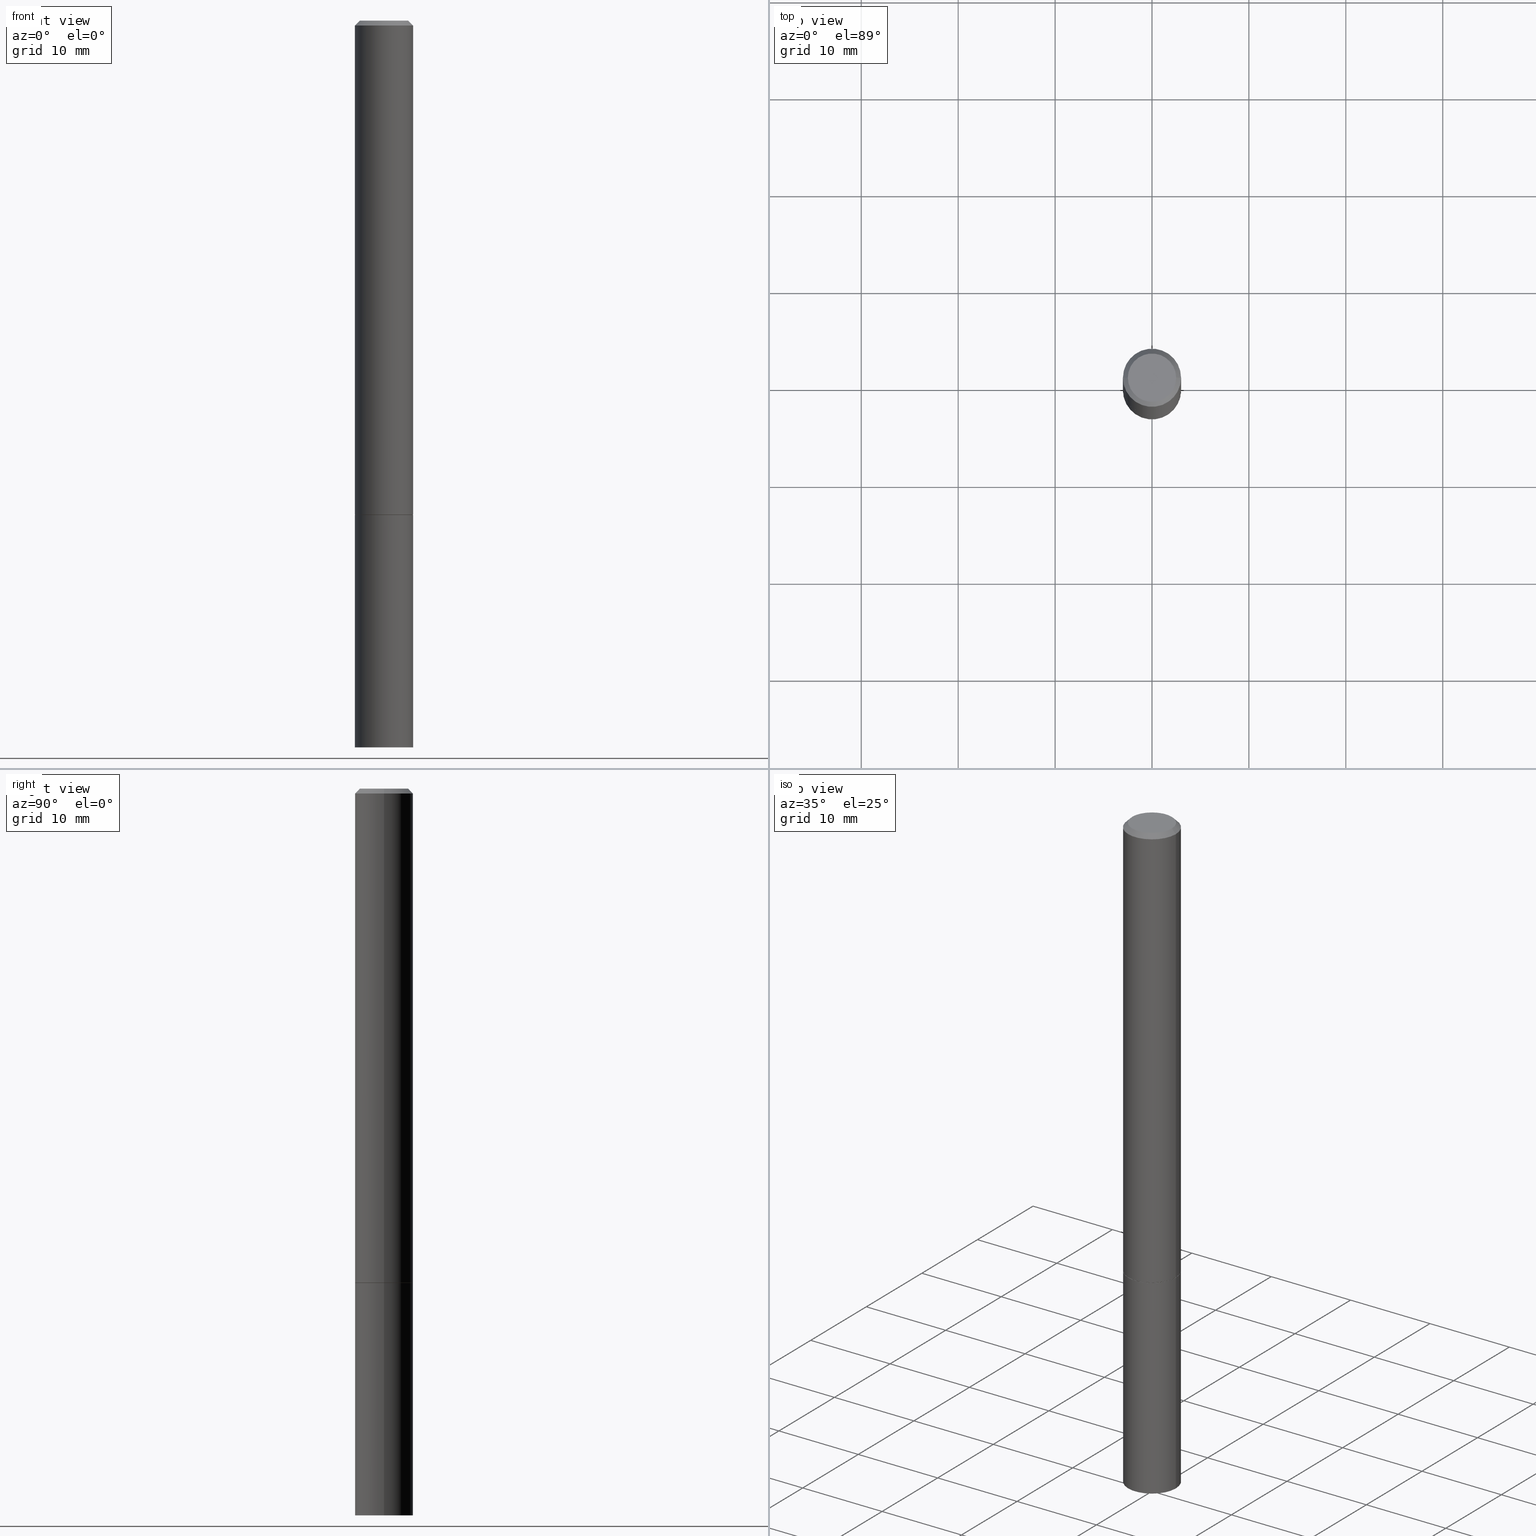
[diagram: canonical four-view strip — front | top / right | iso, engineering-drawing reading convention]
A machine part, canonical four-view strip (front | top / right | iso — engineering-drawing reading convention). The complete STEP part file that produces these views, byte-faithful:
ISO-10303-21;
HEADER;
FILE_DESCRIPTION (( 'STEP AP203' ),
    '1' );
FILE_NAME ('74335.STEP',
    '2024-02-29T08:50:11',
    ( '' ),
    ( '' ),
    'SwSTEP 2.0',
    'SolidWorks 2023',
    '' );
FILE_SCHEMA (( 'CONFIG_CONTROL_DESIGN' ));
ENDSEC;

DATA;
#1 = ORIENTED_EDGE ( 'NONE', *, *, #45, .F. ) ;
#2 = PERSON_AND_ORGANIZATION ( #302, #133 ) ;
#3 = DIRECTION ( 'NONE',  ( -2.445468806185136597E-29, 3.491481338843145583E-15, 1.000000000000000000 ) ) ;
#4 = PERSON_AND_ORGANIZATION ( #302, #133 ) ;
#5 = CIRCLE ( 'NONE', #247, 0.09809999999999979847 ) ;
#6 = DIRECTION ( 'NONE',  ( -2.445468806185136877E-29, 3.491481338843145188E-15, 1.000000000000000000 ) ) ;
#7 = CC_DESIGN_APPROVAL ( #49, ( #109 ) ) ;
#8 = VERTEX_POINT ( 'NONE', #298 ) ;
#9 = CALENDAR_DATE ( 2024, 29, 2 ) ;
#10 = DIRECTION ( 'NONE',  ( -2.445468806185136877E-29, 3.491481338843145188E-15, 1.000000000000000000 ) ) ;
#11 = EDGE_CURVE ( 'NONE', #37, #144, #153, .T. ) ;
#12 = CARTESIAN_POINT ( 'NONE',  ( 0.1180999999999999966, -8.246878922347480654E-16, 5.758764772215000440E-30 ) ) ;
#13 = CLOSED_SHELL ( 'NONE', ( #141, #172, #155, #76 ) ) ;
#14 = CIRCLE ( 'NONE', #160, 0.1170999999999999958 ) ;
#15 = CYLINDRICAL_SURFACE ( 'NONE', #112, 0.1180999999999998995 ) ;
#16 = PLANE ( 'NONE',  #107 ) ;
#17 = DIRECTION ( 'NONE',  ( -2.445468806185136597E-29, 3.491481338843145583E-15, 1.000000000000000000 ) ) ;
#18 = FACE_OUTER_BOUND ( 'NONE', #91, .T. ) ;
#19 = ORIENTED_EDGE ( 'NONE', *, *, #25, .T. ) ;
#20 = CIRCLE ( 'NONE', #70, 0.1180999999999999966 ) ;
#21 = VECTOR ( 'NONE', #162, 39.37007874015748143 ) ;
#22 = DIRECTION ( 'NONE',  ( 1.000000000000000000, 0.000000000000000000, 0.000000000000000000 ) ) ;
#23 = ORIENTED_EDGE ( 'NONE', *, *, #104, .F. ) ;
#24 =( NAMED_UNIT ( * ) SI_UNIT ( $, .STERADIAN. ) SOLID_ANGLE_UNIT ( ) );
#25 = EDGE_CURVE ( 'NONE', #181, #359, #352, .T. ) ;
#26 = APPROVAL_DATE_TIME ( #340, #75 ) ;
#27 = APPROVAL_ROLE ( '' ) ;
#28 = EDGE_CURVE ( 'NONE', #139, #55, #184, .T. ) ;
#29 = CARTESIAN_POINT ( 'NONE',  ( -0.1180999999999999966, -7.820944767866917317E-15, -2.952799999999999869 ) ) ;
#30 = COORDINATED_UNIVERSAL_TIME_OFFSET ( 5, 0, .BEHIND. ) ;
#31 = PRODUCT_RELATED_PRODUCT_CATEGORY ( 'detail', '', ( #346 ) ) ;
#32 = ORIENTED_EDGE ( 'NONE', *, *, #268, .T. ) ;
#33 = ORIENTED_EDGE ( 'NONE', *, *, #63, .F. ) ;
#34 = PERSON_AND_ORGANIZATION_ROLE ( 'creator' ) ;
#35 = AXIS2_PLACEMENT_3D ( 'NONE', #197, #64, #143 ) ;
#36 = ORIENTED_EDGE ( 'NONE', *, *, #226, .F. ) ;
#37 = VERTEX_POINT ( 'NONE', #29 ) ;
#38 = COORDINATED_UNIVERSAL_TIME_OFFSET ( 5, 0, .BEHIND. ) ;
#39 = CARTESIAN_POINT ( 'NONE',  ( 0.1180999999999998995, -8.246878922347473751E-16, 5.758764772214994835E-30 ) ) ;
#40 = EDGE_CURVE ( 'NONE', #336, #239, #199, .T. ) ;
#41 = CARTESIAN_POINT ( 'NONE',  ( 8.246878922347970734E-16, 0.1180999999999929745, -2.007900000000000240 ) ) ;
#42 = ORIENTED_EDGE ( 'NONE', *, *, #40, .T. ) ;
#43 = CARTESIAN_POINT ( 'NONE',  ( 0.1180999999999997746, -8.800544403136792597E-16, -0.02000000000000003164 ) ) ;
#44 = VECTOR ( 'NONE', #267, 39.37007874015748143 ) ;
#45 = EDGE_CURVE ( 'NONE', #8, #144, #212, .T. ) ;
#46 = ORIENTED_EDGE ( 'NONE', *, *, #244, .F. ) ;
#47 = DIRECTION ( 'NONE',  ( 0.7071067811865466846, -7.319954787623252890E-15, -0.7071067811865483499 ) ) ;
#48 = DIRECTION ( 'NONE',  ( -2.445468806185136597E-29, 3.491481338843145583E-15, 1.000000000000000000 ) ) ;
#49 = APPROVAL ( #170, 'UNSPECIFIED' ) ;
#50 = ORIENTED_EDGE ( 'NONE', *, *, #363, .T. ) ;
#51 = DIRECTION ( 'NONE',  ( 1.000000000000000000, -6.982962677686266711E-15, 0.000000000000000000 ) ) ;
#52 = VECTOR ( 'NONE', #173, 39.37007874015748143 ) ;
#53 = DESIGN_CONTEXT ( 'detailed design', #217, 'design' ) ;
#54 = CARTESIAN_POINT ( 'NONE',  ( 4.890937612370280165E-31, -6.982962677686301470E-17, -0.02000000000000003164 ) ) ;
#55 = VERTEX_POINT ( 'NONE', #241 ) ;
#56 = ADVANCED_FACE ( 'NONE', ( #120 ), #136, .T. ) ;
#57 = CARTESIAN_POINT ( 'NONE',  ( -0.1180999999999997746, 7.548582654578835839E-16, -0.02000000000000003164 ) ) ;
#58 = CC_DESIGN_DATE_AND_TIME_ASSIGNMENT ( #195, #151, ( #109 ) ) ;
#59 = DATE_AND_TIME ( #9, #255 ) ;
#60 = ORIENTED_EDGE ( 'NONE', *, *, #89, .T. ) ;
#61 = AXIS2_PLACEMENT_3D ( 'NONE', #157, #274, #106 ) ;
#62 = DIRECTION ( 'NONE',  ( 1.000000000000000000, -6.982962677686266711E-15, 0.000000000000000000 ) ) ;
#63 = EDGE_CURVE ( 'NONE', #37, #253, #20, .T. ) ;
#64 = DIRECTION ( 'NONE',  ( -2.445468806185136597E-29, 3.491481338843145583E-15, 1.000000000000000000 ) ) ;
#65 = CARTESIAN_POINT ( 'NONE',  ( 2.087702828670439639E-46, -2.980686340760894400E-32, -8.537024980200822558E-18 ) ) ;
#66 = CARTESIAN_POINT ( 'NONE',  ( 4.890937612370280165E-31, -6.982962677686301470E-17, -0.02000000000000003164 ) ) ;
#67 = ORIENTED_EDGE ( 'NONE', *, *, #63, .T. ) ;
#68 = DIRECTION ( 'NONE',  ( 1.000000000000000000, -6.982962677686266711E-15, 4.876176775795935232E-29 ) ) ;
#69 = FACE_OUTER_BOUND ( 'NONE', #287, .T. ) ;
#70 = AXIS2_PLACEMENT_3D ( 'NONE', #176, #93, #293 ) ;
#71 = LINE ( 'NONE', #12, #200 ) ;
#72 = EDGE_LOOP ( 'NONE', ( #189, #32, #204, #348 ) ) ;
#73 = DIRECTION ( 'NONE',  ( -2.445468806185136597E-29, 3.491481338843145583E-15, 1.000000000000000000 ) ) ;
#74 = CARTESIAN_POINT ( 'NONE',  ( 4.890937612370280165E-31, -6.982962677686301470E-17, -0.02000000000000003164 ) ) ;
#75 = APPROVAL ( #317, 'UNSPECIFIED' ) ;
#76 = ADVANCED_FACE ( 'NONE', ( #324 ), #201, .T. ) ;
#77 = DIRECTION ( 'NONE',  ( 2.438088387897960049E-29, -3.491481338843145188E-15, -1.000000000000000000 ) ) ;
#78 = ORIENTED_EDGE ( 'NONE', *, *, #118, .F. ) ;
#79 = PERSON_AND_ORGANIZATION ( #302, #133 ) ;
#80 = CARTESIAN_POINT ( 'NONE',  ( 4.910256815939135309E-29, -7.010545380263150922E-15, -2.007899999999999796 ) ) ;
#81 = PRODUCT_DEFINITION_FORMATION_WITH_SPECIFIED_SOURCE ( 'ANY', '', #346, .NOT_KNOWN. ) ;
#82 = APPLICATION_PROTOCOL_DEFINITION ( 'international standard', 'config_control_design', 1994, #217 ) ;
#83 = DIRECTION ( 'NONE',  ( 1.000000000000000000, -6.982962677686267499E-15, 4.876195163481342132E-29 ) ) ;
#84 = LOCAL_TIME ( 3, 50, 11.00000000000000000, #313 ) ;
#85 = DATE_AND_TIME ( #237, #248 ) ;
#86 = LINE ( 'NONE', #318, #44 ) ;
#87 = DIRECTION ( 'NONE',  ( -2.445468806185136597E-29, 3.491481338843145583E-15, 1.000000000000000000 ) ) ;
#88 = ORIENTED_EDGE ( 'NONE', *, *, #45, .T. ) ;
#89 = EDGE_CURVE ( 'NONE', #359, #336, #168, .T. ) ;
#90 = DIRECTION ( 'NONE',  ( 1.000000000000000000, -6.982962677686266711E-15, 4.876176775795936353E-29 ) ) ;
#91 = EDGE_LOOP ( 'NONE', ( #19, #60, #316, #177 ) ) ;
#92 = AXIS2_PLACEMENT_3D ( 'NONE', #80, #252, #308 ) ;
#93 = DIRECTION ( 'NONE',  ( -2.445468806185136597E-29, 3.491481338843145583E-15, 1.000000000000000000 ) ) ;
#94 = MANIFOLD_SOLID_BREP ( 'Body-Move/Copy2[1]', #13 ) ;
#95 = CARTESIAN_POINT ( 'NONE',  ( 0.1180999999999999966, -1.113433398957078679E-14, -2.952799999999999869 ) ) ;
#96 = EDGE_LOOP ( 'NONE', ( #185, #311, #254, #42 ) ) ;
#97 = DIRECTION ( 'NONE',  ( 1.000000000000000000, -6.982962677686265922E-15, 4.876176775795935793E-29 ) ) ;
#98 = CC_DESIGN_DATE_AND_TIME_ASSIGNMENT ( #175, #269, ( #101 ) ) ;
#99 = DIRECTION ( 'NONE',  ( -2.445468806185136597E-29, 3.491481338843145583E-15, 1.000000000000000000 ) ) ;
#100 = CIRCLE ( 'NONE', #309, 0.1180999999999999966 ) ;
#101 = SECURITY_CLASSIFICATION ( '', '', #124 ) ;
#102 = DIRECTION ( 'NONE',  ( 2.438088387897960049E-29, -3.491481338843145188E-15, -1.000000000000000000 ) ) ;
#103 = CARTESIAN_POINT ( 'NONE',  ( 0.000000000000000000, 0.000000000000000000, 0.000000000000000000 ) ) ;
#104 = EDGE_CURVE ( 'NONE', #154, #181, #150, .T. ) ;
#105 = ADVANCED_BREP_SHAPE_REPRESENTATION ( '74335', ( #94, #211, #156 ), #315 ) ;
#106 = DIRECTION ( 'NONE',  ( 1.000000000000000000, -6.982962677686264344E-15, 0.000000000000000000 ) ) ;
#107 = AXIS2_PLACEMENT_3D ( 'NONE', #41, #210, #132 ) ;
#108 = AXIS2_PLACEMENT_3D ( 'NONE', #54, #227, #288 ) ;
#109 = PRODUCT_DEFINITION ( 'UNKNOWN', '', #81, #53 ) ;
#110 = LINE ( 'NONE', #57, #21 ) ;
#111 = CC_DESIGN_PERSON_AND_ORGANIZATION_ASSIGNMENT ( #167, #319, ( #81 ) ) ;
#112 = AXIS2_PLACEMENT_3D ( 'NONE', #103, #218, #68 ) ;
#113 = CONICAL_SURFACE ( 'NONE', #284, 0.1180999999999997746, 0.7853981633974471688 ) ;
#114 = CARTESIAN_POINT ( 'NONE',  ( 6.850286386810212718E-16, 0.09809999999999979847, -3.467828318306122952E-16 ) ) ;
#115 = APPLICATION_CONTEXT ( 'configuration controlled 3d designs of mechanical parts and assemblies' ) ;
#116 = SHAPE_DEFINITION_REPRESENTATION ( #235, #105 ) ;
#117 = DIRECTION ( 'NONE',  ( -2.445468806185136597E-29, 3.491481338843145583E-15, 1.000000000000000000 ) ) ;
#118 = EDGE_CURVE ( 'NONE', #198, #359, #86, .T. ) ;
#119 = PERSON_AND_ORGANIZATION_ROLE ( 'design_owner' ) ;
#120 = FACE_OUTER_BOUND ( 'NONE', #179, .T. ) ;
#121 = CONICAL_SURFACE ( 'NONE', #108, 0.1180999999999997746, 0.7853981633974471688 ) ;
#122 = APPROVAL_ROLE ( '' ) ;
#123 = CARTESIAN_POINT ( 'NONE',  ( -0.09809999999999979847, 7.199434520694525264E-16, -8.537024980205735990E-18 ) ) ;
#124 = SECURITY_CLASSIFICATION_LEVEL ( 'unclassified' ) ;
#125 = DIRECTION ( 'NONE',  ( 1.000000000000000000, -6.982962677686265133E-15, 0.000000000000000000 ) ) ;
#126 = ORIENTED_EDGE ( 'NONE', *, *, #118, .T. ) ;
#127 = DIRECTION ( 'NONE',  ( -2.445468806185136597E-29, 3.491481338843145583E-15, 1.000000000000000000 ) ) ;
#128 = VECTOR ( 'NONE', #6, 39.37007874015748143 ) ;
#129 = CARTESIAN_POINT ( 'NONE',  ( 4.910256815939135309E-29, -7.010545380263150922E-15, -2.007899999999999796 ) ) ;
#130 = EDGE_CURVE ( 'NONE', #181, #239, #295, .T. ) ;
#131 = CARTESIAN_POINT ( 'NONE',  ( 2.087702828670439639E-46, -2.980686340760894400E-32, -8.537024980200822558E-18 ) ) ;
#132 = DIRECTION ( 'NONE',  ( -1.000000000000000000, 6.982962677686265922E-15, -4.876176775795935793E-29 ) ) ;
#133 = ORGANIZATION ( 'UNSPECIFIED', 'UNSPECIFIED', '' ) ;
#134 = CARTESIAN_POINT ( 'NONE',  ( -0.1170999999999999958, -6.173201382339850542E-15, -2.007899999999999796 ) ) ;
#135 = DIRECTION ( 'NONE',  ( -1.000000000000000000, 6.982962677686265922E-15, -4.876176775795935793E-29 ) ) ;
#136 = CONICAL_SURFACE ( 'NONE', #188, 0.1170999999999999958, 0.7853981633974227439 ) ;
#137 = LOCAL_TIME ( 3, 50, 11.00000000000000000, #30 ) ;
#138 =( LENGTH_UNIT ( ) NAMED_UNIT ( * ) SI_UNIT ( $, .METRE. ) );
#139 = VERTEX_POINT ( 'NONE', #123 ) ;
#140 = LOCAL_TIME ( 3, 50, 11.00000000000000000, #261 ) ;
#141 = ADVANCED_FACE ( 'NONE', ( #238 ), #236, .T. ) ;
#142 = PERSON_AND_ORGANIZATION_ROLE ( 'creator' ) ;
#143 = DIRECTION ( 'NONE',  ( 1.000000000000000000, -6.982962677686264344E-15, 0.000000000000000000 ) ) ;
#144 = VERTEX_POINT ( 'NONE', #205 ) ;
#145 = ORIENTED_EDGE ( 'NONE', *, *, #104, .T. ) ;
#146 = CALENDAR_DATE ( 2024, 29, 2 ) ;
#147 = ORIENTED_EDGE ( 'NONE', *, *, #223, .T. ) ;
#148 = ADVANCED_FACE ( 'NONE', ( #321 ), #113, .T. ) ;
#149 = CIRCLE ( 'NONE', #333, 0.1180999999999999966 ) ;
#150 = LINE ( 'NONE', #233, #277 ) ;
#151 = DATE_TIME_ROLE ( 'creation_date' ) ;
#152 = DIMENSIONAL_EXPONENTS ( 1.000000000000000000, 0.000000000000000000, 0.000000000000000000, 0.000000000000000000, 0.000000000000000000, 0.000000000000000000, 0.000000000000000000 ) ;
#153 = LINE ( 'NONE', #347, #290 ) ;
#154 = VERTEX_POINT ( 'NONE', #250 ) ;
#155 = ADVANCED_FACE ( 'NONE', ( #276 ), #16, .F. ) ;
#156 = AXIS2_PLACEMENT_3D ( 'NONE', #163, #285, #22 ) ;
#157 = CARTESIAN_POINT ( 'NONE',  ( 4.910256815939135309E-29, -7.010545380263150922E-15, -2.007899999999999796 ) ) ;
#158 = DIRECTION ( 'NONE',  ( -1.000000000000000000, 6.982962677686266711E-15, 0.000000000000000000 ) ) ;
#159 = CARTESIAN_POINT ( 'NONE',  ( 7.220980290903470182E-29, -1.030964609733603853E-14, -2.952799999999999869 ) ) ;
#160 = AXIS2_PLACEMENT_3D ( 'NONE', #281, #192, #310 ) ;
#161 = DIRECTION ( 'NONE',  ( -2.445468806185136597E-29, 3.491481338843145583E-15, 1.000000000000000000 ) ) ;
#162 = DIRECTION ( 'NONE',  ( -0.7071067811865466846, 2.468850131082247989E-15, -0.7071067811865483499 ) ) ;
#163 = CARTESIAN_POINT ( 'NONE',  ( 0.000000000000000000, 0.000000000000000000, 0.000000000000000000 ) ) ;
#164 = EDGE_LOOP ( 'NONE', ( #350, #196 ) ) ;
#165 = VECTOR ( 'NONE', #47, 39.37007874015748143 ) ;
#166 = PLANE ( 'NONE',  #360 ) ;
#167 = PERSON_AND_ORGANIZATION ( #302, #133 ) ;
#168 = LINE ( 'NONE', #291, #52 ) ;
#169 = CONICAL_SURFACE ( 'NONE', #61, 0.1170999999999999958, 0.7853981633974227439 ) ;
#170 = APPROVAL_STATUS ( 'not_yet_approved' ) ;
#171 = CARTESIAN_POINT ( 'NONE',  ( 4.890937612370280165E-31, -6.982962677686301470E-17, -0.02000000000000003164 ) ) ;
#172 = ADVANCED_FACE ( 'NONE', ( #249 ), #243, .T. ) ;
#173 = DIRECTION ( 'NONE',  ( -2.445468806185136877E-29, 3.491481338843145188E-15, 1.000000000000000000 ) ) ;
#174 = EDGE_LOOP ( 'NONE', ( #322, #147 ) ) ;
#175 = DATE_AND_TIME ( #366, #140 ) ;
#176 = CARTESIAN_POINT ( 'NONE',  ( 7.220980290903470182E-29, -1.030964609733603853E-14, -2.952799999999999869 ) ) ;
#177 = ORIENTED_EDGE ( 'NONE', *, *, #130, .F. ) ;
#178 = APPROVAL_DATE_TIME ( #85, #222 ) ;
#179 = EDGE_LOOP ( 'NONE', ( #78, #334, #145, #283 ) ) ;
#180 = ORIENTED_EDGE ( 'NONE', *, *, #244, .T. ) ;
#181 = VERTEX_POINT ( 'NONE', #275 ) ;
#182 = DIRECTION ( 'NONE',  ( 1.000000000000000000, -6.982962677686273021E-15, 0.000000000000000000 ) ) ;
#183 = ADVANCED_FACE ( 'NONE', ( #358 ), #15, .T. ) ;
#184 = CIRCLE ( 'NONE', #343, 0.09809999999999979847 ) ;
#185 = ORIENTED_EDGE ( 'NONE', *, *, #209, .F. ) ;
#186 = DIRECTION ( 'NONE',  ( 1.000000000000000000, -6.982962677686267499E-15, 4.876195163481342132E-29 ) ) ;
#187 = ORIENTED_EDGE ( 'NONE', *, *, #240, .T. ) ;
#188 = AXIS2_PLACEMENT_3D ( 'NONE', #344, #87, #203 ) ;
#189 = ORIENTED_EDGE ( 'NONE', *, *, #89, .F. ) ;
#190 = ADVANCED_FACE ( 'NONE', ( #357 ), #271, .F. ) ;
#191 = DIRECTION ( 'NONE',  ( 1.000000000000000000, -6.982962677686264344E-15, 0.000000000000000000 ) ) ;
#192 = DIRECTION ( 'NONE',  ( -2.445468806185136597E-29, 3.491481338843145583E-15, 1.000000000000000000 ) ) ;
#193 = CYLINDRICAL_SURFACE ( 'NONE', #221, 0.1180999999999998995 ) ;
#194 = ORIENTED_EDGE ( 'NONE', *, *, #11, .F. ) ;
#195 = DATE_AND_TIME ( #342, #84 ) ;
#196 = ORIENTED_EDGE ( 'NONE', *, *, #356, .F. ) ;
#197 = CARTESIAN_POINT ( 'NONE',  ( 4.907811347132949706E-29, -7.007053898924307126E-15, -2.006899999999999462 ) ) ;
#198 = VERTEX_POINT ( 'NONE', #134 ) ;
#199 = CIRCLE ( 'NONE', #219, 0.1180999999999997746 ) ;
#200 = VECTOR ( 'NONE', #354, 39.37007874015748143 ) ;
#201 = CYLINDRICAL_SURFACE ( 'NONE', #258, 0.1180999999999999966 ) ;
#202 = COORDINATED_UNIVERSAL_TIME_OFFSET ( 5, 0, .BEHIND. ) ;
#203 = DIRECTION ( 'NONE',  ( 1.000000000000000000, -6.982962677686264344E-15, 0.000000000000000000 ) ) ;
#204 = ORIENTED_EDGE ( 'NONE', *, *, #130, .T. ) ;
#205 = CARTESIAN_POINT ( 'NONE',  ( -0.1180999999999999966, -7.820944767866917317E-15, -2.007899999999999796 ) ) ;
#206 = CC_DESIGN_SECURITY_CLASSIFICATION ( #101, ( #81 ) ) ;
#207 = CC_DESIGN_PERSON_AND_ORGANIZATION_ASSIGNMENT ( #230, #34, ( #109 ) ) ;
#208 = EDGE_LOOP ( 'NONE', ( #215, #256, #1, #46 ) ) ;
#209 = EDGE_CURVE ( 'NONE', #55, #239, #216, .T. ) ;
#210 = DIRECTION ( 'NONE',  ( 2.438088387897960049E-29, -3.491481338843145188E-15, -1.000000000000000000 ) ) ;
#211 = MANIFOLD_SOLID_BREP ( 'Body-Move/Copy2[2]', #272 ) ;
#212 = CIRCLE ( 'NONE', #234, 0.1180999999999999966 ) ;
#213 = CC_DESIGN_APPROVAL ( #75, ( #81 ) ) ;
#214 = DIRECTION ( 'NONE',  ( 2.445468806185136597E-29, -3.491481338843145583E-15, -1.000000000000000000 ) ) ;
#215 = ORIENTED_EDGE ( 'NONE', *, *, #226, .T. ) ;
#216 = LINE ( 'NONE', #43, #165 ) ;
#217 = APPLICATION_CONTEXT ( 'configuration controlled 3d designs of mechanical parts and assemblies' ) ;
#218 = DIRECTION ( 'NONE',  ( -2.445468806185136597E-29, 3.491481338843145583E-15, 1.000000000000000000 ) ) ;
#219 = AXIS2_PLACEMENT_3D ( 'NONE', #171, #3, #62 ) ;
#220 =( CONVERSION_BASED_UNIT ( 'INCH', #224 ) LENGTH_UNIT ( ) NAMED_UNIT ( #152 ) );
#221 = AXIS2_PLACEMENT_3D ( 'NONE', #312, #257, #361 ) ;
#222 = APPROVAL ( #339, 'UNSPECIFIED' ) ;
#223 = EDGE_CURVE ( 'NONE', #55, #139, #5, .T. ) ;
#224 = LENGTH_MEASURE_WITH_UNIT ( LENGTH_MEASURE( 0.02539999999999999897 ), #138 );
#225 = CARTESIAN_POINT ( 'NONE',  ( 4.907811347132949706E-29, -7.007053898924307126E-15, -2.006899999999999462 ) ) ;
#226 = EDGE_CURVE ( 'NONE', #253, #37, #100, .T. ) ;
#227 = DIRECTION ( 'NONE',  ( 2.445468806185136597E-29, -3.491481338843145583E-15, -1.000000000000000000 ) ) ;
#228 = APPROVAL_PERSON_ORGANIZATION ( #292, #49, #232 ) ;
#229 = APPROVAL_DATE_TIME ( #59, #49 ) ;
#230 = PERSON_AND_ORGANIZATION ( #302, #133 ) ;
#231 = DIRECTION ( 'NONE',  ( 0.7071067811865294761, -2.468850131082068128E-15, 0.7071067811865655584 ) ) ;
#232 = APPROVAL_ROLE ( '' ) ;
#233 = CARTESIAN_POINT ( 'NONE',  ( 0.1170999999999999958, -7.828250309820211592E-15, -2.007899999999999796 ) ) ;
#234 = AXIS2_PLACEMENT_3D ( 'NONE', #314, #127, #125 ) ;
#235 = PRODUCT_DEFINITION_SHAPE ( 'NONE', 'NONE',  #109 ) ;
#236 = CYLINDRICAL_SURFACE ( 'NONE', #242, 0.1180999999999999966 ) ;
#237 = CALENDAR_DATE ( 2024, 29, 2 ) ;
#238 = FACE_OUTER_BOUND ( 'NONE', #208, .T. ) ;
#239 = VERTEX_POINT ( 'NONE', #279 ) ;
#240 = EDGE_CURVE ( 'NONE', #144, #8, #149, .T. ) ;
#241 = CARTESIAN_POINT ( 'NONE',  ( 0.09809999999999979847, -7.765346469475326737E-16, -8.537024980195711910E-18 ) ) ;
#242 = AXIS2_PLACEMENT_3D ( 'NONE', #262, #349, #90 ) ;
#243 = PLANE ( 'NONE',  #304 ) ;
#244 = EDGE_CURVE ( 'NONE', #253, #8, #71, .T. ) ;
#245 = DIRECTION ( 'NONE',  ( -2.438088387897960049E-29, 3.491481338843145188E-15, 1.000000000000000000 ) ) ;
#246 = ORIENTED_EDGE ( 'NONE', *, *, #209, .T. ) ;
#247 = AXIS2_PLACEMENT_3D ( 'NONE', #131, #73, #186 ) ;
#248 = LOCAL_TIME ( 3, 50, 11.00000000000000000, #202 ) ;
#249 = FACE_OUTER_BOUND ( 'NONE', #259, .T. ) ;
#250 = CARTESIAN_POINT ( 'NONE',  ( 0.1170999999999999958, -7.828250309820211592E-15, -2.007899999999999796 ) ) ;
#251 = CC_DESIGN_PERSON_AND_ORGANIZATION_ASSIGNMENT ( #4, #142, ( #81 ) ) ;
#252 = DIRECTION ( 'NONE',  ( -2.445468806185136597E-29, 3.491481338843145583E-15, 1.000000000000000000 ) ) ;
#253 = VERTEX_POINT ( 'NONE', #95 ) ;
#254 = ORIENTED_EDGE ( 'NONE', *, *, #303, .T. ) ;
#255 = LOCAL_TIME ( 3, 50, 11.00000000000000000, #38 ) ;
#256 = ORIENTED_EDGE ( 'NONE', *, *, #11, .T. ) ;
#257 = DIRECTION ( 'NONE',  ( -2.445468806185136597E-29, 3.491481338843145583E-15, 1.000000000000000000 ) ) ;
#258 = AXIS2_PLACEMENT_3D ( 'NONE', #296, #117, #266 ) ;
#259 = EDGE_LOOP ( 'NONE', ( #36, #33 ) ) ;
#260 = AXIS2_PLACEMENT_3D ( 'NONE', #225, #161, #191 ) ;
#261 = COORDINATED_UNIVERSAL_TIME_OFFSET ( 5, 0, .BEHIND. ) ;
#262 = CARTESIAN_POINT ( 'NONE',  ( 0.000000000000000000, 0.000000000000000000, 0.000000000000000000 ) ) ;
#263 = EDGE_LOOP ( 'NONE', ( #365, #246, #50, #341 ) ) ;
#264 = ADVANCED_FACE ( 'NONE', ( #69 ), #169, .T. ) ;
#265 = PERSON_AND_ORGANIZATION ( #302, #133 ) ;
#266 = DIRECTION ( 'NONE',  ( 1.000000000000000000, -6.982962677686266711E-15, 4.876176775795936353E-29 ) ) ;
#267 = DIRECTION ( 'NONE',  ( -0.7071067811865294761, 7.493145998870289474E-15, 0.7071067811865655584 ) ) ;
#268 = EDGE_CURVE ( 'NONE', #359, #181, #286, .T. ) ;
#269 = DATE_TIME_ROLE ( 'classification_date' ) ;
#270 = ORIENTED_EDGE ( 'NONE', *, *, #280, .T. ) ;
#271 = PLANE ( 'NONE',  #328 ) ;
#272 = CLOSED_SHELL ( 'NONE', ( #264, #307, #326, #148, #183, #56, #190, #331 ) ) ;
#273 = EDGE_LOOP ( 'NONE', ( #194, #67, #180, #294 ) ) ;
#274 = DIRECTION ( 'NONE',  ( -2.445468806185136597E-29, 3.491481338843145583E-15, 1.000000000000000000 ) ) ;
#275 = CARTESIAN_POINT ( 'NONE',  ( 0.1181000000000000105, -7.831741791159054599E-15, -2.006899999999999462 ) ) ;
#276 = FACE_OUTER_BOUND ( 'NONE', #299, .T. ) ;
#277 = VECTOR ( 'NONE', #231, 39.37007874015748143 ) ;
#278 = CC_DESIGN_APPROVAL ( #222, ( #101 ) ) ;
#279 = CARTESIAN_POINT ( 'NONE',  ( 0.1180999999999997746, -8.800544403136792597E-16, -0.02000000000000003164 ) ) ;
#280 = EDGE_CURVE ( 'NONE', #154, #198, #14, .T. ) ;
#281 = CARTESIAN_POINT ( 'NONE',  ( 4.910256815939135309E-29, -7.010545380263150922E-15, -2.007899999999999796 ) ) ;
#282 = CARTESIAN_POINT ( 'NONE',  ( -0.1181000000000000383, -2.699290791917902676E-15, -2.006899999999999462 ) ) ;
#283 = ORIENTED_EDGE ( 'NONE', *, *, #268, .F. ) ;
#284 = AXIS2_PLACEMENT_3D ( 'NONE', #66, #214, #158 ) ;
#285 = DIRECTION ( 'NONE',  ( 0.000000000000000000, 0.000000000000000000, 1.000000000000000000 ) ) ;
#286 = CIRCLE ( 'NONE', #260, 0.1181000000000000105 ) ;
#287 = EDGE_LOOP ( 'NONE', ( #270, #126, #320, #23 ) ) ;
#288 = DIRECTION ( 'NONE',  ( -1.000000000000000000, 6.982962677686266711E-15, 0.000000000000000000 ) ) ;
#289 = PERSON_AND_ORGANIZATION_ROLE ( 'classification_officer' ) ;
#290 = VECTOR ( 'NONE', #10, 39.37007874015748143 ) ;
#291 = CARTESIAN_POINT ( 'NONE',  ( -0.1180999999999998995, 8.391509709326776054E-16, -5.809262341591038879E-30 ) ) ;
#292 = PERSON_AND_ORGANIZATION ( #302, #133 ) ;
#293 = DIRECTION ( 'NONE',  ( 1.000000000000000000, -6.982962677686273021E-15, 0.000000000000000000 ) ) ;
#294 = ORIENTED_EDGE ( 'NONE', *, *, #240, .F. ) ;
#295 = LINE ( 'NONE', #39, #128 ) ;
#296 = CARTESIAN_POINT ( 'NONE',  ( 0.000000000000000000, 0.000000000000000000, 0.000000000000000000 ) ) ;
#297 = PERSON_AND_ORGANIZATION ( #302, #133 ) ;
#298 = CARTESIAN_POINT ( 'NONE',  ( 0.1180999999999999966, -7.835233272497899184E-15, -2.007899999999999796 ) ) ;
#299 = EDGE_LOOP ( 'NONE', ( #88, #187 ) ) ;
#300 = DIRECTION ( 'NONE',  ( 1.000000000000000000, -6.982962677686265133E-15, 0.000000000000000000 ) ) ;
#301 = APPROVAL_PERSON_ORGANIZATION ( #2, #75, #27 ) ;
#302 = PERSON ( 'UNSPECIFIED', 'UNSPECIFIED', 'UNSPECIFIED', ('UNSPECIFIED'), ('UNSPECIFIED'), ('UNSPECIFIED') ) ;
#303 = EDGE_CURVE ( 'NONE', #139, #336, #110, .T. ) ;
#304 = AXIS2_PLACEMENT_3D ( 'NONE', #325, #102, #327 ) ;
#305 = AXIS2_PLACEMENT_3D ( 'NONE', #74, #48, #51 ) ;
#306 = FACE_OUTER_BOUND ( 'NONE', #263, .T. ) ;
#307 = ADVANCED_FACE ( 'NONE', ( #18 ), #193, .T. ) ;
#308 = DIRECTION ( 'NONE',  ( 1.000000000000000000, -6.982962677686264344E-15, 0.000000000000000000 ) ) ;
#309 = AXIS2_PLACEMENT_3D ( 'NONE', #159, #99, #182 ) ;
#310 = DIRECTION ( 'NONE',  ( 1.000000000000000000, -6.982962677686264344E-15, 0.000000000000000000 ) ) ;
#311 = ORIENTED_EDGE ( 'NONE', *, *, #28, .F. ) ;
#312 = CARTESIAN_POINT ( 'NONE',  ( 0.000000000000000000, 0.000000000000000000, 0.000000000000000000 ) ) ;
#313 = COORDINATED_UNIVERSAL_TIME_OFFSET ( 5, 0, .BEHIND. ) ;
#314 = CARTESIAN_POINT ( 'NONE',  ( 4.910256815939135309E-29, -7.010545380263150922E-15, -2.007899999999999796 ) ) ;
#315 =( GEOMETRIC_REPRESENTATION_CONTEXT ( 3 ) GLOBAL_UNCERTAINTY_ASSIGNED_CONTEXT ( ( #337 ) ) GLOBAL_UNIT_ASSIGNED_CONTEXT ( ( #220, #335, #24 ) ) REPRESENTATION_CONTEXT ( 'NONE', 'WORKASPACE' ) );
#316 = ORIENTED_EDGE ( 'NONE', *, *, #363, .F. ) ;
#317 = APPROVAL_STATUS ( 'not_yet_approved' ) ;
#318 = CARTESIAN_POINT ( 'NONE',  ( -0.1170999999999999958, -6.178499836688073733E-15, -2.007899999999999796 ) ) ;
#319 = PERSON_AND_ORGANIZATION_ROLE ( 'design_supplier' ) ;
#320 = ORIENTED_EDGE ( 'NONE', *, *, #25, .F. ) ;
#321 = FACE_OUTER_BOUND ( 'NONE', #96, .T. ) ;
#322 = ORIENTED_EDGE ( 'NONE', *, *, #28, .T. ) ;
#323 = CIRCLE ( 'NONE', #305, 0.1180999999999997746 ) ;
#324 = FACE_OUTER_BOUND ( 'NONE', #273, .T. ) ;
#325 = CARTESIAN_POINT ( 'NONE',  ( 8.246878922348201475E-16, 0.1180999999999896855, -2.952800000000000313 ) ) ;
#326 = ADVANCED_FACE ( 'NONE', ( #306 ), #121, .T. ) ;
#327 = DIRECTION ( 'NONE',  ( -1.000000000000000000, 6.982962677686265922E-15, -4.876176775795935793E-29 ) ) ;
#328 = AXIS2_PLACEMENT_3D ( 'NONE', #129, #245, #97 ) ;
#329 = CIRCLE ( 'NONE', #92, 0.1170999999999999958 ) ;
#330 = CARTESIAN_POINT ( 'NONE',  ( 4.910256815939135309E-29, -7.010545380263150922E-15, -2.007899999999999796 ) ) ;
#331 = ADVANCED_FACE ( 'NONE', ( #332 ), #166, .F. ) ;
#332 = FACE_OUTER_BOUND ( 'NONE', #174, .T. ) ;
#333 = AXIS2_PLACEMENT_3D ( 'NONE', #330, #17, #300 ) ;
#334 = ORIENTED_EDGE ( 'NONE', *, *, #356, .T. ) ;
#335 =( NAMED_UNIT ( * ) PLANE_ANGLE_UNIT ( ) SI_UNIT ( $, .RADIAN. ) );
#336 = VERTEX_POINT ( 'NONE', #338 ) ;
#337 = UNCERTAINTY_MEASURE_WITH_UNIT (LENGTH_MEASURE( 1.000000000000000082E-05 ), #220, 'distance_accuracy_value', 'NONE');
#338 = CARTESIAN_POINT ( 'NONE',  ( -0.1180999999999997746, 7.548582654578835839E-16, -0.02000000000000003164 ) ) ;
#339 = APPROVAL_STATUS ( 'not_yet_approved' ) ;
#340 = DATE_AND_TIME ( #146, #137 ) ;
#341 = ORIENTED_EDGE ( 'NONE', *, *, #303, .F. ) ;
#342 = CALENDAR_DATE ( 2024, 29, 2 ) ;
#343 = AXIS2_PLACEMENT_3D ( 'NONE', #65, #351, #83 ) ;
#344 = CARTESIAN_POINT ( 'NONE',  ( 4.910256815939135309E-29, -7.010545380263150922E-15, -2.007899999999999796 ) ) ;
#345 = APPROVAL_PERSON_ORGANIZATION ( #265, #222, #122 ) ;
#346 = PRODUCT ( '74335', '74335', '', ( #364 ) ) ;
#347 = CARTESIAN_POINT ( 'NONE',  ( -0.1180999999999999966, 8.391509709326782957E-16, -5.809262341591043784E-30 ) ) ;
#348 = ORIENTED_EDGE ( 'NONE', *, *, #40, .F. ) ;
#349 = DIRECTION ( 'NONE',  ( -2.445468806185136597E-29, 3.491481338843145583E-15, 1.000000000000000000 ) ) ;
#350 = ORIENTED_EDGE ( 'NONE', *, *, #280, .F. ) ;
#351 = DIRECTION ( 'NONE',  ( -2.445468806185136597E-29, 3.491481338843145583E-15, 1.000000000000000000 ) ) ;
#352 = CIRCLE ( 'NONE', #35, 0.1181000000000000105 ) ;
#353 = CC_DESIGN_PERSON_AND_ORGANIZATION_ASSIGNMENT ( #297, #289, ( #101 ) ) ;
#354 = DIRECTION ( 'NONE',  ( -2.445468806185136877E-29, 3.491481338843145188E-15, 1.000000000000000000 ) ) ;
#355 = CC_DESIGN_PERSON_AND_ORGANIZATION_ASSIGNMENT ( #79, #119, ( #346 ) ) ;
#356 = EDGE_CURVE ( 'NONE', #198, #154, #329, .T. ) ;
#357 = FACE_OUTER_BOUND ( 'NONE', #164, .T. ) ;
#358 = FACE_OUTER_BOUND ( 'NONE', #72, .T. ) ;
#359 = VERTEX_POINT ( 'NONE', #282 ) ;
#360 = AXIS2_PLACEMENT_3D ( 'NONE', #114, #77, #135 ) ;
#361 = DIRECTION ( 'NONE',  ( 1.000000000000000000, -6.982962677686266711E-15, 4.876176775795935232E-29 ) ) ;
#362 = APPLICATION_PROTOCOL_DEFINITION ( 'international standard', 'config_control_design', 1994, #115 ) ;
#363 = EDGE_CURVE ( 'NONE', #239, #336, #323, .T. ) ;
#364 = MECHANICAL_CONTEXT ( 'NONE', #115, 'mechanical' ) ;
#365 = ORIENTED_EDGE ( 'NONE', *, *, #223, .F. ) ;
#366 = CALENDAR_DATE ( 2024, 29, 2 ) ;
ENDSEC;
END-ISO-10303-21;
